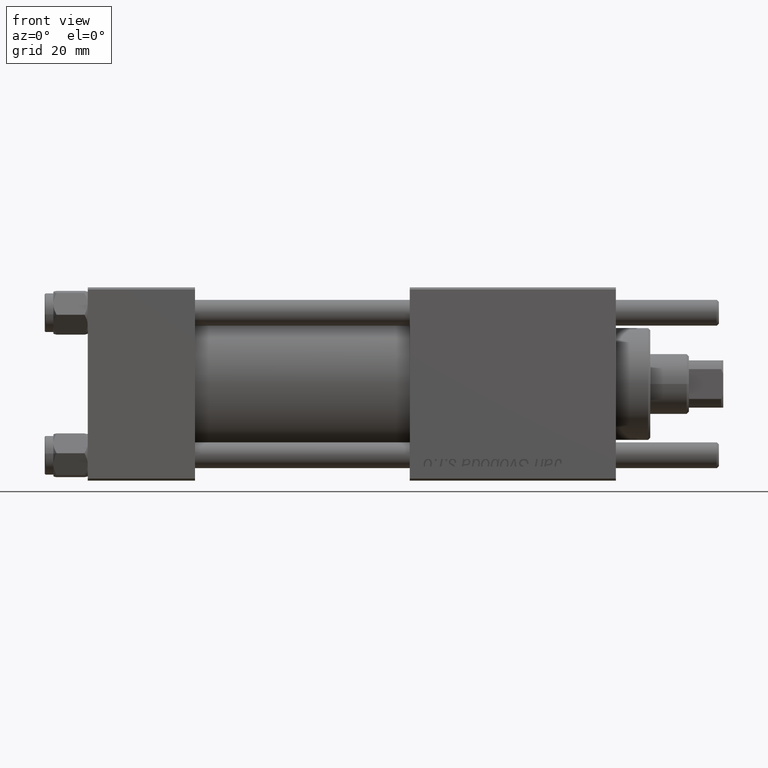
[diagram: clean part render]
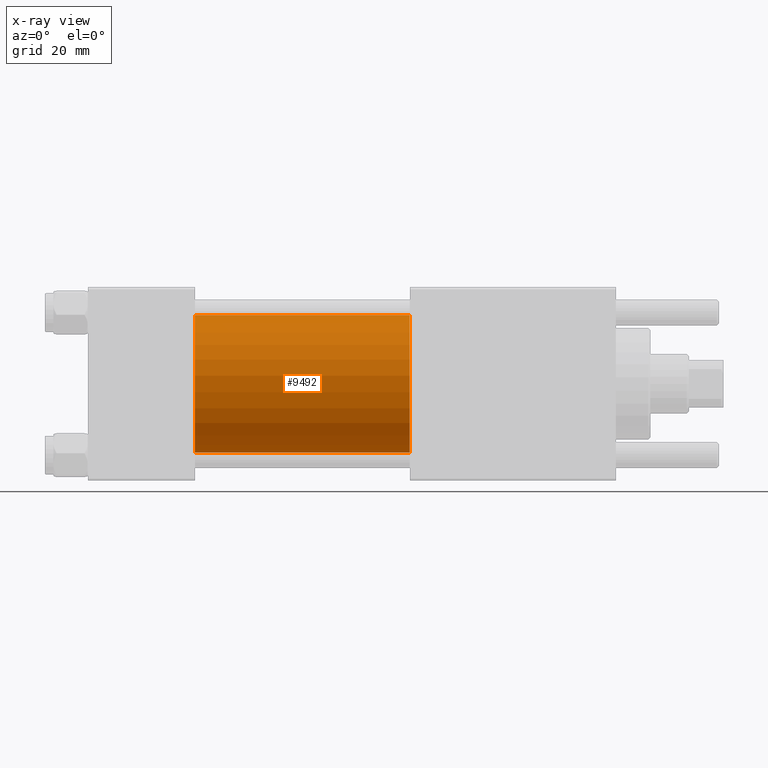
[diagram: x-ray — body ghosted, one internal face saturated and labeled with its STEP entity id]
A machine part, front view, then the same camera in x-ray: the body is ghosted and one INTERNAL B-rep face — a face not visible from any outside direction — is saturated and labeled: STEP entity #9492.
In plain terms, the highlighted cylindrical surface (partial cylindrical patch) has radius 16 mm, axis along (-1, -0, -0).
Its self-contained STEP definition (entity closure, byte-faithful):
#6 = DIRECTION ( 'NONE',  ( -1.000000000000000000, -0.000000000000000000, -0.000000000000000000 ) ) ;
#3310 = ORIENTED_EDGE ( 'NONE', *, *, #45268, .T. ) ;
#4044 = CARTESIAN_POINT ( 'NONE',  ( 75.00000000000001421, -2.602085213965210642E-15, 16.00000000000000000 ) ) ;
#4488 = CARTESIAN_POINT ( 'NONE',  ( 75.00000000000001421, -6.426503353294456087E-16, -16.00000000000000000 ) ) ;
#5677 = CARTESIAN_POINT ( 'NONE',  ( 75.00000000000001421, -2.602085213965210642E-15, 0.000000000000000000 ) ) ;
#6544 = DIRECTION ( 'NONE',  ( 0.000000000000000000, 0.000000000000000000, 1.000000000000000000 ) ) ;
#8249 = EDGE_CURVE ( 'NONE', #31030, #27273, #39510, .T. ) ;
#9309 = AXIS2_PLACEMENT_3D ( 'NONE', #43648, #56022, #21444 ) ;
#9492 = ADVANCED_FACE ( 'NONE', ( #37670 ), #19808, .F. ) ;
#9746 = AXIS2_PLACEMENT_3D ( 'NONE', #5677, #23258, #32472 ) ;
#13381 = VECTOR ( 'NONE', #16453, 1000.000000000000000 ) ;
#13487 = VERTEX_POINT ( 'NONE', #39281 ) ;
#14215 = EDGE_CURVE ( 'NONE', #44994, #27273, #46100, .T. ) ;
#16453 = DIRECTION ( 'NONE',  ( -1.000000000000000000, -0.000000000000000000, -0.000000000000000000 ) ) ;
#19808 = CYLINDRICAL_SURFACE ( 'NONE', #26683, 16.00000000000000000 ) ;
#21444 = DIRECTION ( 'NONE',  ( 0.000000000000000000, 0.000000000000000000, -1.000000000000000000 ) ) ;
#21912 = LINE ( 'NONE', #4044, #13381 ) ;
#23125 = CARTESIAN_POINT ( 'NONE',  ( 25.00000000000000000, -2.602085213965210642E-15, 16.00000000000000000 ) ) ;
#23258 = DIRECTION ( 'NONE',  ( 1.000000000000000000, 0.000000000000000000, 0.000000000000000000 ) ) ;
#26683 = AXIS2_PLACEMENT_3D ( 'NONE', #37949, #38230, #6544 ) ;
#27273 = VERTEX_POINT ( 'NONE', #42410 ) ;
#27946 = ORIENTED_EDGE ( 'NONE', *, *, #33017, .F. ) ;
#31030 = VERTEX_POINT ( 'NONE', #4488 ) ;
#31202 = VECTOR ( 'NONE', #6, 1000.000000000000000 ) ;
#31700 = EDGE_LOOP ( 'NONE', ( #3310, #37552, #40400, #27946 ) ) ;
#32472 = DIRECTION ( 'NONE',  ( 0.000000000000000000, 0.000000000000000000, -1.000000000000000000 ) ) ;
#32974 = CARTESIAN_POINT ( 'NONE',  ( 75.00000000000001421, -6.426503353294456087E-16, -16.00000000000000000 ) ) ;
#33017 = EDGE_CURVE ( 'NONE', #13487, #44994, #21912, .T. ) ;
#33679 = CIRCLE ( 'NONE', #9746, 16.00000000000000000 ) ;
#37552 = ORIENTED_EDGE ( 'NONE', *, *, #8249, .T. ) ;
#37670 = FACE_OUTER_BOUND ( 'NONE', #31700, .T. ) ;
#37949 = CARTESIAN_POINT ( 'NONE',  ( 75.00000000000001421, -2.602085213965210642E-15, 0.000000000000000000 ) ) ;
#38230 = DIRECTION ( 'NONE',  ( -1.000000000000000000, -0.000000000000000000, -0.000000000000000000 ) ) ;
#39281 = CARTESIAN_POINT ( 'NONE',  ( 75.00000000000001421, -2.602085213965210642E-15, 16.00000000000000000 ) ) ;
#39510 = LINE ( 'NONE', #32974, #31202 ) ;
#40400 = ORIENTED_EDGE ( 'NONE', *, *, #14215, .F. ) ;
#42410 = CARTESIAN_POINT ( 'NONE',  ( 25.00000000000000000, -6.426503353294456087E-16, -16.00000000000000000 ) ) ;
#43648 = CARTESIAN_POINT ( 'NONE',  ( 25.00000000000000000, -2.602085213965210642E-15, 0.000000000000000000 ) ) ;
#44994 = VERTEX_POINT ( 'NONE', #23125 ) ;
#45268 = EDGE_CURVE ( 'NONE', #13487, #31030, #33679, .T. ) ;
#46100 = CIRCLE ( 'NONE', #9309, 16.00000000000000000 ) ;
#56022 = DIRECTION ( 'NONE',  ( 1.000000000000000000, 0.000000000000000000, 0.000000000000000000 ) ) ;